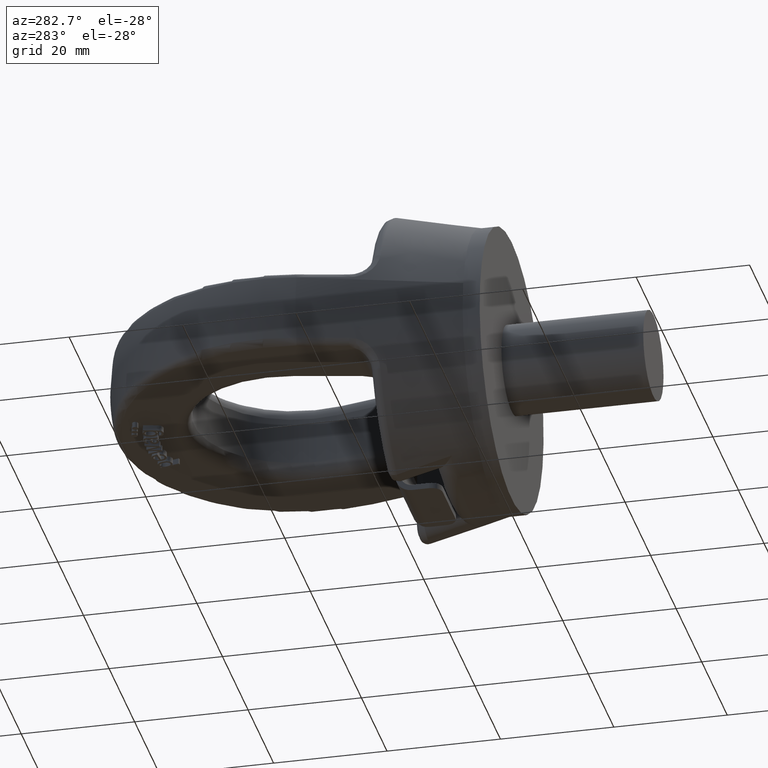
[diagram: clean part render]
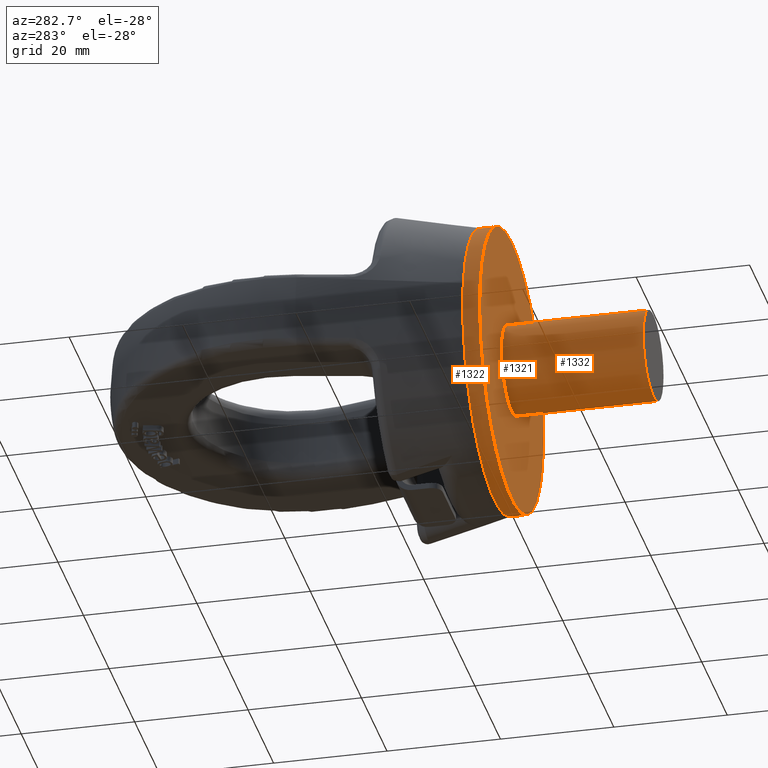
[diagram: same view with one multi-face feature highlighted, each face labeled with its STEP entity id]
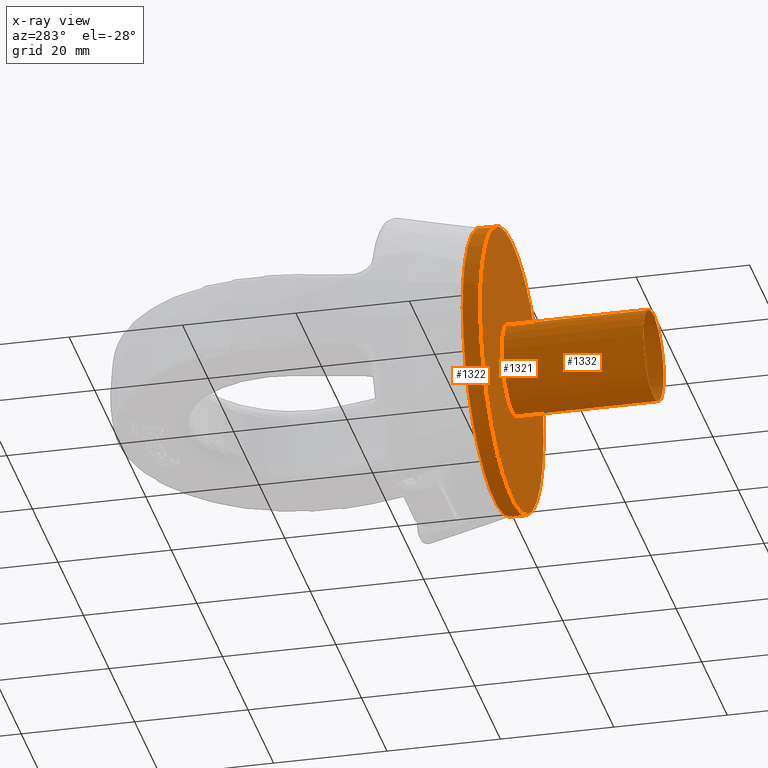
[diagram: x-ray of the same camera — body ghosted, the whole feature saturated]
A machine part, auxiliary view. The highlighted faces form ONE feature: a stepped (counterbored) hole: 2 coaxial cylindrical walls of radii 7.935 -> 25 mm joined by 1 annular planar shoulder face(s). The faces share edges in the B-rep.
The next image is the same camera in x-ray: the body ghosted and the whole hole feature saturated, so the bore chain is visible through the body.
Their STEP definitions:
[1] entity #1322 (Cylinder):
#1057=CYLINDRICAL_SURFACE('',#5159,25.0000000000001);
#1322=ADVANCED_FACE('',(#1771,#1772),#1057,.T.);
#1684=CIRCLE('',#5142,25.0000000000001);
#1689=CIRCLE('',#5156,25.0000000000001);
#1771=FACE_BOUND('',#1836,.T.);
#1772=FACE_BOUND('',#1837,.T.);
#1836=EDGE_LOOP('',(#2853));
#1837=EDGE_LOOP('',(#2854));
#2853=ORIENTED_EDGE('',*,*,#4392,.T.);
#2854=ORIENTED_EDGE('',*,*,#4407,.T.);
#4002=VERTEX_POINT('',#6856);
#4011=VERTEX_POINT('',#6885);
#4392=EDGE_CURVE('',#4002,#4002,#1684,.T.);
#4407=EDGE_CURVE('',#4011,#4011,#1689,.T.);
#5142=AXIS2_PLACEMENT_3D('',#6855,#5497,#5498);
#5156=AXIS2_PLACEMENT_3D('',#6884,#5531,#5532);
#5159=AXIS2_PLACEMENT_3D('',#6889,#5537,#5538);
#5497=DIRECTION('',(0.,-1.,0.));
#5498=DIRECTION('',(0.,0.,1.));
#5531=DIRECTION('',(0.,1.,0.));
#5532=DIRECTION('',(0.,0.,1.));
#5537=DIRECTION('',(0.,1.,0.));
#5538=DIRECTION('',(0.,0.,1.));
#6855=CARTESIAN_POINT('',(-1.27403500852703E-13,3.,1.55761200359274E-14));
#6856=CARTESIAN_POINT('',(-1.27403500852703E-13,3.,25.0000000000001));
#6884=CARTESIAN_POINT('',(-1.27403500852703E-13,0.,1.55761200359274E-14));
#6885=CARTESIAN_POINT('',(-1.27403500852703E-13,0.,25.0000000000001));
#6889=CARTESIAN_POINT('',(-1.27403500852703E-13,-0.3,1.55761200359274E-14));
[2] entity #1332 (Cylinder):
#1058=CYLINDRICAL_SURFACE('',#5172,7.935);
#1332=ADVANCED_FACE('',(#1773,#1774),#1058,.T.);
#1690=CIRCLE('',#5157,7.935);
#1691=CIRCLE('',#5171,7.935);
#1773=FACE_BOUND('',#1847,.T.);
#1774=FACE_BOUND('',#1848,.T.);
#1847=EDGE_LOOP('',(#2899));
#1848=EDGE_LOOP('',(#2900));
#2899=ORIENTED_EDGE('',*,*,#4427,.T.);
#2900=ORIENTED_EDGE('',*,*,#4408,.F.);
#4012=VERTEX_POINT('',#6887);
#4019=VERTEX_POINT('',#6924);
#4408=EDGE_CURVE('',#4012,#4012,#1690,.T.);
#4427=EDGE_CURVE('',#4019,#4019,#1691,.T.);
#5157=AXIS2_PLACEMENT_3D('',#6886,#5533,#5534);
#5171=AXIS2_PLACEMENT_3D('',#6923,#5577,#5578);
#5172=AXIS2_PLACEMENT_3D('',#6925,#5579,#5580);
#5533=DIRECTION('',(0.,1.,0.));
#5534=DIRECTION('',(1.,0.,6.12323399573677E-17));
#5577=DIRECTION('',(0.,1.,0.));
#5578=DIRECTION('',(1.,0.,6.12323399573677E-17));
#5579=DIRECTION('',(0.,1.,0.));
#5580=DIRECTION('',(0.,0.,1.));
#6886=CARTESIAN_POINT('',(0.,0.,0.));
#6887=CARTESIAN_POINT('',(7.935,0.,4.85878617561712E-16));
#6923=CARTESIAN_POINT('',(0.,-25.,0.));
#6924=CARTESIAN_POINT('',(7.935,-25.,4.85878617561712E-16));
#6925=CARTESIAN_POINT('',(0.,-25.,0.));
[3] entity #1321 (Plane):
#1321=ADVANCED_FACE('',(#1769,#1770),#1557,.F.);
#1557=PLANE('',#5158);
#1689=CIRCLE('',#5156,25.0000000000001);
#1690=CIRCLE('',#5157,7.935);
#1769=FACE_BOUND('',#1834,.T.);
#1770=FACE_BOUND('',#1835,.T.);
#1834=EDGE_LOOP('',(#2851));
#1835=EDGE_LOOP('',(#2852));
#2851=ORIENTED_EDGE('',*,*,#4407,.F.);
#2852=ORIENTED_EDGE('',*,*,#4408,.T.);
#4011=VERTEX_POINT('',#6885);
#4012=VERTEX_POINT('',#6887);
#4407=EDGE_CURVE('',#4011,#4011,#1689,.T.);
#4408=EDGE_CURVE('',#4012,#4012,#1690,.T.);
#5156=AXIS2_PLACEMENT_3D('',#6884,#5531,#5532);
#5157=AXIS2_PLACEMENT_3D('',#6886,#5533,#5534);
#5158=AXIS2_PLACEMENT_3D('',#6888,#5535,#5536);
#5531=DIRECTION('',(0.,1.,0.));
#5532=DIRECTION('',(0.,0.,1.));
#5533=DIRECTION('',(0.,1.,0.));
#5534=DIRECTION('',(1.,0.,6.12323399573677E-17));
#5535=DIRECTION('',(0.,1.,0.));
#5536=DIRECTION('',(0.,0.,1.));
#6884=CARTESIAN_POINT('',(-1.27403500852703E-13,0.,1.55761200359274E-14));
#6885=CARTESIAN_POINT('',(-1.27403500852703E-13,0.,25.0000000000001));
#6886=CARTESIAN_POINT('',(0.,0.,0.));
#6887=CARTESIAN_POINT('',(7.935,0.,4.85878617561712E-16));
#6888=CARTESIAN_POINT('',(0.,0.,0.));